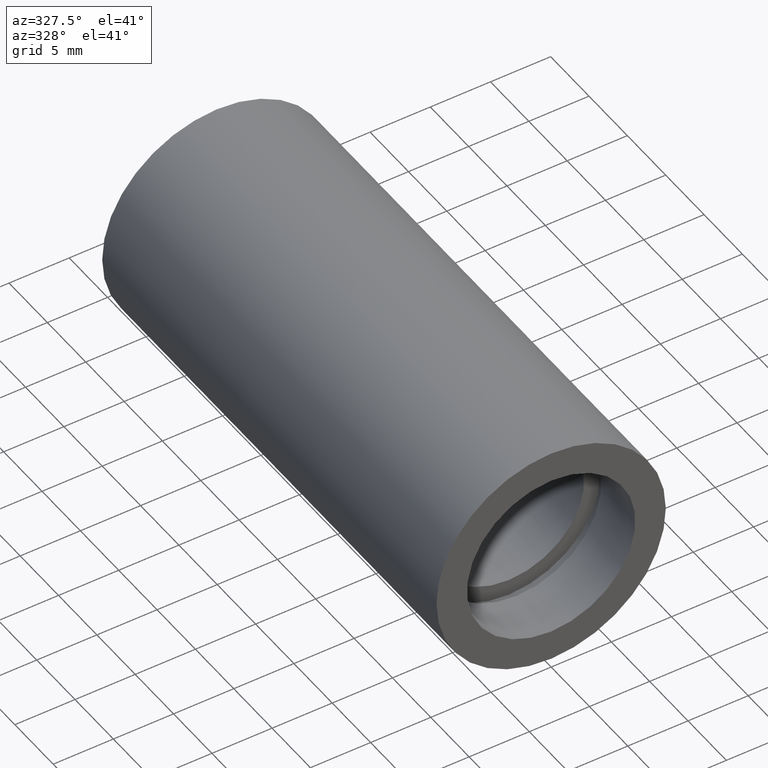
[diagram: clean part render]
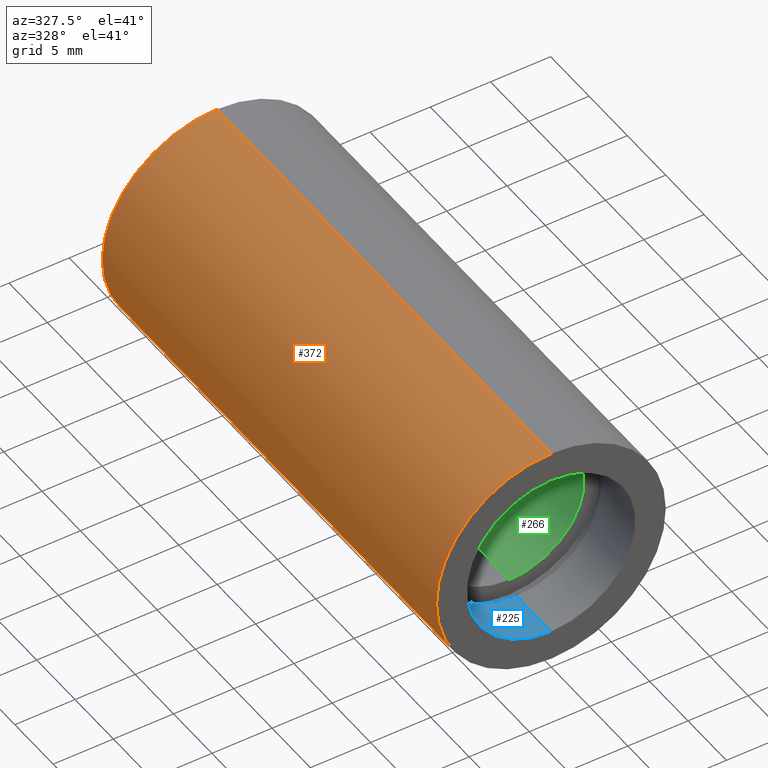
[diagram: same view with three faces highlighted in distinct colors, each labeled with its STEP entity id]
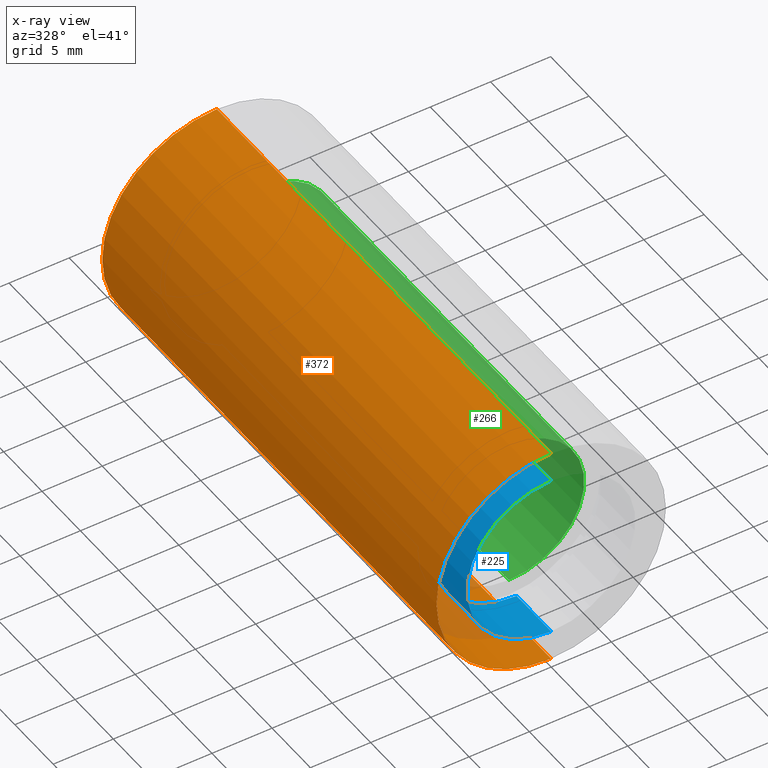
[diagram: x-ray of the same camera — body ghosted, the three highlighted faces saturated]
A machine part, auxiliary view with three faces highlighted in distinct colors.
The next image is the same camera in x-ray (body ghosted, the three faces saturated) — at least one of them is partly hidden behind the body in this view.
Their STEP definitions:

[orange] entity #372 — the highlighted cylindrical surface (partial cylindrical patch) has radius 9.525 mm, axis along (-0, 1, -0).
#1 = VECTOR ( 'NONE', #55, 1000.000000000000000 ) ;
#26 = ORIENTED_EDGE ( 'NONE', *, *, #174, .T. ) ;
#30 = LINE ( 'NONE', #64, #1 ) ;
#32 = CARTESIAN_POINT ( 'NONE',  ( 0.0000000000000000000, 161.3761669434274500, 0.0000000000000000000 ) ) ;
#43 = VERTEX_POINT ( 'NONE', #101 ) ;
#55 = DIRECTION ( 'NONE',  ( -0.0000000000000000000, 1.000000000000000000, -0.0000000000000000000 ) ) ;
#64 = CARTESIAN_POINT ( 'NONE',  ( 1.166476076187856400E-015, 161.3761669434274500, -9.525000000000019900 ) ) ;
#72 = AXIS2_PLACEMENT_3D ( 'NONE', #460, #170, #609 ) ;
#92 = EDGE_CURVE ( 'NONE', #594, #320, #458, .T. ) ;
#101 = CARTESIAN_POINT ( 'NONE',  ( 1.166476076187856400E-015, -2.775557561562891400E-014, -9.525000000000019900 ) ) ;
#118 = CARTESIAN_POINT ( 'NONE',  ( 0.0000000000000000000, 43.59999999999998700, 9.525000000000019900 ) ) ;
#160 = CARTESIAN_POINT ( 'NONE',  ( 0.0000000000000000000, 161.3761669434274500, 9.525000000000019900 ) ) ;
#170 = DIRECTION ( 'NONE',  ( -0.0000000000000000000, 1.000000000000000000, -0.0000000000000000000 ) ) ;
#174 = EDGE_CURVE ( 'NONE', #399, #320, #382, .T. ) ;
#190 = CIRCLE ( 'NONE', #72, 9.525000000000019900 ) ;
#194 = ORIENTED_EDGE ( 'NONE', *, *, #443, .T. ) ;
#236 = EDGE_CURVE ( 'NONE', #43, #594, #30, .T. ) ;
#245 = ORIENTED_EDGE ( 'NONE', *, *, #236, .F. ) ;
#272 = CYLINDRICAL_SURFACE ( 'NONE', #381, 9.525000000000019900 ) ;
#291 = EDGE_LOOP ( 'NONE', ( #245, #194, #26, #454 ) ) ;
#320 = VERTEX_POINT ( 'NONE', #118 ) ;
#372 = ADVANCED_FACE ( 'NONE', ( #564 ), #272, .T. ) ;
#381 = AXIS2_PLACEMENT_3D ( 'NONE', #32, #418, #567 ) ;
#382 = LINE ( 'NONE', #160, #411 ) ;
#399 = VERTEX_POINT ( 'NONE', #456 ) ;
#411 = VECTOR ( 'NONE', #588, 1000.000000000000000 ) ;
#418 = DIRECTION ( 'NONE',  ( -0.0000000000000000000, 1.000000000000000000, -0.0000000000000000000 ) ) ;
#443 = EDGE_CURVE ( 'NONE', #43, #399, #190, .T. ) ;
#454 = ORIENTED_EDGE ( 'NONE', *, *, #92, .F. ) ;
#456 = CARTESIAN_POINT ( 'NONE',  ( 0.0000000000000000000, -2.775557561562891400E-014, 9.525000000000019900 ) ) ;
#458 = CIRCLE ( 'NONE', #622, 9.525000000000019900 ) ;
#460 = CARTESIAN_POINT ( 'NONE',  ( 0.0000000000000000000, -2.775557561562891400E-014, 0.0000000000000000000 ) ) ;
#473 = CARTESIAN_POINT ( 'NONE',  ( 1.166476076187856400E-015, 43.59999999999998700, -9.525000000000019900 ) ) ;
#533 = CARTESIAN_POINT ( 'NONE',  ( 0.0000000000000000000, 43.59999999999998700, 0.0000000000000000000 ) ) ;
#564 = FACE_OUTER_BOUND ( 'NONE', #291, .T. ) ;
#567 = DIRECTION ( 'NONE',  ( 0.0000000000000000000, 0.0000000000000000000, 1.000000000000000000 ) ) ;
#580 = DIRECTION ( 'NONE',  ( 0.0000000000000000000, 0.0000000000000000000, 1.000000000000000000 ) ) ;
#588 = DIRECTION ( 'NONE',  ( -0.0000000000000000000, 1.000000000000000000, -0.0000000000000000000 ) ) ;
#594 = VERTEX_POINT ( 'NONE', #473 ) ;
#609 = DIRECTION ( 'NONE',  ( 0.0000000000000000000, 0.0000000000000000000, 1.000000000000000000 ) ) ;
#620 = DIRECTION ( 'NONE',  ( -0.0000000000000000000, 1.000000000000000000, -0.0000000000000000000 ) ) ;
#622 = AXIS2_PLACEMENT_3D ( 'NONE', #533, #620, #580 ) ;

[blue] entity #225 — the highlighted cylindrical surface (partial cylindrical patch) has radius 7 mm, axis along (-0, 1, -0).
#17 = EDGE_CURVE ( 'NONE', #423, #407, #350, .T. ) ;
#24 = DIRECTION ( 'NONE',  ( 0.0000000000000000000, 0.0000000000000000000, 1.000000000000000000 ) ) ;
#44 = VERTEX_POINT ( 'NONE', #185 ) ;
#59 = ORIENTED_EDGE ( 'NONE', *, *, #390, .F. ) ;
#77 = DIRECTION ( 'NONE',  ( -0.0000000000000000000, 1.000000000000000000, -0.0000000000000000000 ) ) ;
#113 = EDGE_CURVE ( 'NONE', #407, #44, #395, .T. ) ;
#114 = ORIENTED_EDGE ( 'NONE', *, *, #509, .F. ) ;
#119 = AXIS2_PLACEMENT_3D ( 'NONE', #220, #217, #24 ) ;
#147 = VECTOR ( 'NONE', #518, 1000.000000000000000 ) ;
#155 = CARTESIAN_POINT ( 'NONE',  ( 0.0000000000000000000, -2.775557561562891400E-014, 7.000000000000020400 ) ) ;
#163 = VERTEX_POINT ( 'NONE', #155 ) ;
#169 = AXIS2_PLACEMENT_3D ( 'NONE', #199, #388, #593 ) ;
#172 = CYLINDRICAL_SURFACE ( 'NONE', #169, 7.000000000000020400 ) ;
#185 = CARTESIAN_POINT ( 'NONE',  ( 0.0000000000000000000, 4.499999999999976000, 7.000000000000020400 ) ) ;
#188 = DIRECTION ( 'NONE',  ( -0.0000000000000000000, 1.000000000000000000, -0.0000000000000000000 ) ) ;
#199 = CARTESIAN_POINT ( 'NONE',  ( 0.0000000000000000000, 161.3761669434274500, 0.0000000000000000000 ) ) ;
#209 = EDGE_LOOP ( 'NONE', ( #114, #300, #624, #59 ) ) ;
#217 = DIRECTION ( 'NONE',  ( -0.0000000000000000000, 1.000000000000000000, -0.0000000000000000000 ) ) ;
#220 = CARTESIAN_POINT ( 'NONE',  ( 0.0000000000000000000, -2.775557561562891400E-014, 0.0000000000000000000 ) ) ;
#225 = ADVANCED_FACE ( 'NONE', ( #514 ), #172, .F. ) ;
#239 = DIRECTION ( 'NONE',  ( 0.0000000000000000000, 0.0000000000000000000, 1.000000000000000000 ) ) ;
#300 = ORIENTED_EDGE ( 'NONE', *, *, #17, .T. ) ;
#307 = LINE ( 'NONE', #365, #314 ) ;
#314 = VECTOR ( 'NONE', #77, 1000.000000000000000 ) ;
#350 = LINE ( 'NONE', #469, #147 ) ;
#365 = CARTESIAN_POINT ( 'NONE',  ( 0.0000000000000000000, 161.3761669434274500, 7.000000000000020400 ) ) ;
#388 = DIRECTION ( 'NONE',  ( -0.0000000000000000000, 1.000000000000000000, -0.0000000000000000000 ) ) ;
#390 = EDGE_CURVE ( 'NONE', #163, #44, #307, .T. ) ;
#395 = CIRCLE ( 'NONE', #602, 7.000000000000020400 ) ;
#407 = VERTEX_POINT ( 'NONE', #508 ) ;
#409 = CARTESIAN_POINT ( 'NONE',  ( 8.572527594031496900E-016, -2.775557561562891400E-014, -7.000000000000020400 ) ) ;
#423 = VERTEX_POINT ( 'NONE', #409 ) ;
#434 = CIRCLE ( 'NONE', #119, 7.000000000000020400 ) ;
#435 = CARTESIAN_POINT ( 'NONE',  ( 0.0000000000000000000, 4.499999999999976000, 0.0000000000000000000 ) ) ;
#469 = CARTESIAN_POINT ( 'NONE',  ( 8.572527594031496900E-016, 161.3761669434274500, -7.000000000000020400 ) ) ;
#508 = CARTESIAN_POINT ( 'NONE',  ( 8.572527594031496900E-016, 4.499999999999976000, -7.000000000000020400 ) ) ;
#509 = EDGE_CURVE ( 'NONE', #423, #163, #434, .T. ) ;
#514 = FACE_OUTER_BOUND ( 'NONE', #209, .T. ) ;
#518 = DIRECTION ( 'NONE',  ( -0.0000000000000000000, 1.000000000000000000, -0.0000000000000000000 ) ) ;
#593 = DIRECTION ( 'NONE',  ( 0.0000000000000000000, 0.0000000000000000000, 1.000000000000000000 ) ) ;
#602 = AXIS2_PLACEMENT_3D ( 'NONE', #435, #188, #239 ) ;
#624 = ORIENTED_EDGE ( 'NONE', *, *, #113, .T. ) ;

[green] entity #266 — the highlighted cylindrical surface (partial cylindrical patch) has radius 6.25 mm, axis along (-0, 1, -0).
#27 = EDGE_CURVE ( 'NONE', #262, #540, #597, .T. ) ;
#96 = CARTESIAN_POINT ( 'NONE',  ( 7.654042494670981300E-016, 38.09999999999999400, -6.250000000000019500 ) ) ;
#98 = AXIS2_PLACEMENT_3D ( 'NONE', #228, #270, #614 ) ;
#100 = CARTESIAN_POINT ( 'NONE',  ( 7.654042494670981300E-016, 5.499999999999976900, -6.250000000000019500 ) ) ;
#107 = CARTESIAN_POINT ( 'NONE',  ( 0.0000000000000000000, 38.09999999999999400, 6.250000000000019500 ) ) ;
#137 = ORIENTED_EDGE ( 'NONE', *, *, #621, .T. ) ;
#142 = EDGE_LOOP ( 'NONE', ( #582, #472, #137, #387 ) ) ;
#157 = VERTEX_POINT ( 'NONE', #444 ) ;
#171 = CARTESIAN_POINT ( 'NONE',  ( 7.654042494670981300E-016, 161.3761669434274500, -6.250000000000019500 ) ) ;
#181 = CARTESIAN_POINT ( 'NONE',  ( 0.0000000000000000000, 161.3761669434274500, 6.250000000000019500 ) ) ;
#228 = CARTESIAN_POINT ( 'NONE',  ( 0.0000000000000000000, 38.09999999999999400, 0.0000000000000000000 ) ) ;
#246 = EDGE_CURVE ( 'NONE', #157, #553, #488, .T. ) ;
#251 = DIRECTION ( 'NONE',  ( -0.0000000000000000000, 1.000000000000000000, -0.0000000000000000000 ) ) ;
#262 = VERTEX_POINT ( 'NONE', #107 ) ;
#266 = ADVANCED_FACE ( 'NONE', ( #457 ), #428, .F. ) ;
#270 = DIRECTION ( 'NONE',  ( -0.0000000000000000000, 1.000000000000000000, -0.0000000000000000000 ) ) ;
#294 = DIRECTION ( 'NONE',  ( 0.0000000000000000000, 0.0000000000000000000, 1.000000000000000000 ) ) ;
#322 = LINE ( 'NONE', #171, #617 ) ;
#327 = LINE ( 'NONE', #181, #538 ) ;
#363 = DIRECTION ( 'NONE',  ( -0.0000000000000000000, 1.000000000000000000, -0.0000000000000000000 ) ) ;
#373 = EDGE_CURVE ( 'NONE', #553, #540, #322, .T. ) ;
#387 = ORIENTED_EDGE ( 'NONE', *, *, #27, .T. ) ;
#397 = CARTESIAN_POINT ( 'NONE',  ( 0.0000000000000000000, 161.3761669434274500, 0.0000000000000000000 ) ) ;
#427 = AXIS2_PLACEMENT_3D ( 'NONE', #436, #591, #294 ) ;
#428 = CYLINDRICAL_SURFACE ( 'NONE', #471, 6.250000000000019500 ) ;
#436 = CARTESIAN_POINT ( 'NONE',  ( 0.0000000000000000000, 5.499999999999976900, 0.0000000000000000000 ) ) ;
#444 = CARTESIAN_POINT ( 'NONE',  ( 0.0000000000000000000, 5.499999999999976900, 6.250000000000019500 ) ) ;
#453 = DIRECTION ( 'NONE',  ( 0.0000000000000000000, 0.0000000000000000000, 1.000000000000000000 ) ) ;
#457 = FACE_OUTER_BOUND ( 'NONE', #142, .T. ) ;
#471 = AXIS2_PLACEMENT_3D ( 'NONE', #397, #251, #453 ) ;
#472 = ORIENTED_EDGE ( 'NONE', *, *, #246, .F. ) ;
#488 = CIRCLE ( 'NONE', #427, 6.250000000000019500 ) ;
#527 = DIRECTION ( 'NONE',  ( -0.0000000000000000000, 1.000000000000000000, -0.0000000000000000000 ) ) ;
#538 = VECTOR ( 'NONE', #527, 1000.000000000000000 ) ;
#540 = VERTEX_POINT ( 'NONE', #96 ) ;
#553 = VERTEX_POINT ( 'NONE', #100 ) ;
#582 = ORIENTED_EDGE ( 'NONE', *, *, #373, .F. ) ;
#591 = DIRECTION ( 'NONE',  ( -0.0000000000000000000, 1.000000000000000000, -0.0000000000000000000 ) ) ;
#597 = CIRCLE ( 'NONE', #98, 6.250000000000019500 ) ;
#614 = DIRECTION ( 'NONE',  ( 0.0000000000000000000, 0.0000000000000000000, 1.000000000000000000 ) ) ;
#617 = VECTOR ( 'NONE', #363, 1000.000000000000000 ) ;
#621 = EDGE_CURVE ( 'NONE', #157, #262, #327, .T. ) ;